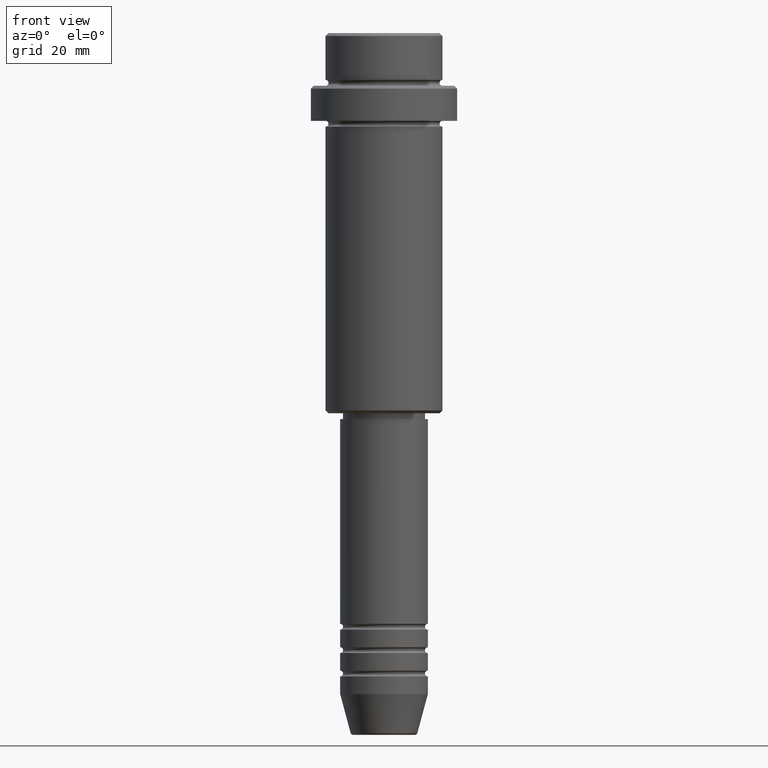
[diagram: clean part render]
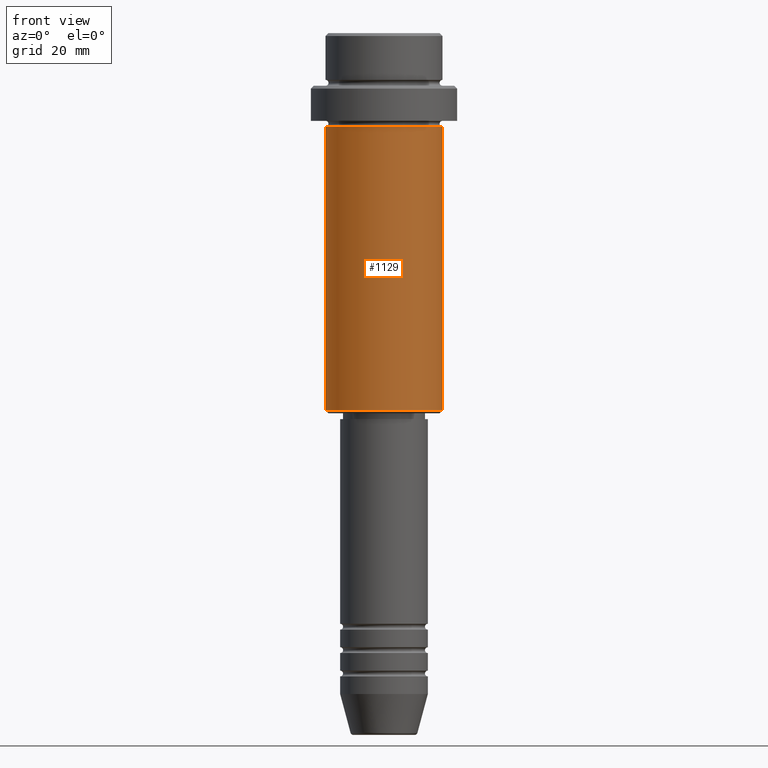
[diagram: same view with one face highlighted and labeled with its STEP entity id]
A machine part, front view. The second image highlights one B-rep face of the part: STEP entity #1129.
In plain terms, the highlighted cylindrical surface (partial cylindrical patch) has radius 10 mm, axis along (-0, -0, 1).
Its self-contained STEP definition (entity closure, byte-faithful):
#23 = LINE ( 'NONE', #113, #448 ) ;
#45 = VERTEX_POINT ( 'NONE', #390 ) ;
#49 = CARTESIAN_POINT ( 'NONE',  ( 9.999999999999998224, 0.000000000000000000, -16.00000000000000000 ) ) ;
#85 = LINE ( 'NONE', #949, #176 ) ;
#113 = CARTESIAN_POINT ( 'NONE',  ( 9.999999999999998224, 0.000000000000000000, 0.000000000000000000 ) ) ;
#114 = VERTEX_POINT ( 'NONE', #49 ) ;
#133 = CARTESIAN_POINT ( 'NONE',  ( -9.999999999999998224, 1.224646799147353059E-15, -16.00000000000000000 ) ) ;
#172 = VERTEX_POINT ( 'NONE', #492 ) ;
#175 = CYLINDRICAL_SURFACE ( 'NONE', #199, 9.999999999999998224 ) ;
#176 = VECTOR ( 'NONE', #1062, 1000.000000000000000 ) ;
#199 = AXIS2_PLACEMENT_3D ( 'NONE', #1286, #1290, #608 ) ;
#215 = DIRECTION ( 'NONE',  ( -0.000000000000000000, -0.000000000000000000, 1.000000000000000000 ) ) ;
#273 = DIRECTION ( 'NONE',  ( 1.000000000000000000, 0.000000000000000000, 0.000000000000000000 ) ) ;
#324 = ORIENTED_EDGE ( 'NONE', *, *, #1316, .T. ) ;
#390 = CARTESIAN_POINT ( 'NONE',  ( 9.999999999999998224, 0.000000000000000000, -64.50000000000001421 ) ) ;
#448 = VECTOR ( 'NONE', #215, 1000.000000000000000 ) ;
#465 = VERTEX_POINT ( 'NONE', #133 ) ;
#492 = CARTESIAN_POINT ( 'NONE',  ( -9.999999999999998224, 1.224646799147353059E-15, -64.50000000000001421 ) ) ;
#509 = ORIENTED_EDGE ( 'NONE', *, *, #743, .F. ) ;
#608 = DIRECTION ( 'NONE',  ( 1.000000000000000000, 0.000000000000000000, 0.000000000000000000 ) ) ;
#641 = DIRECTION ( 'NONE',  ( -0.000000000000000000, -0.000000000000000000, 1.000000000000000000 ) ) ;
#673 = AXIS2_PLACEMENT_3D ( 'NONE', #1415, #641, #761 ) ;
#702 = DIRECTION ( 'NONE',  ( -0.000000000000000000, -0.000000000000000000, 1.000000000000000000 ) ) ;
#743 = EDGE_CURVE ( 'NONE', #465, #114, #1227, .T. ) ;
#761 = DIRECTION ( 'NONE',  ( -1.000000000000000000, 0.000000000000000000, 0.000000000000000000 ) ) ;
#810 = AXIS2_PLACEMENT_3D ( 'NONE', #926, #702, #273 ) ;
#849 = FACE_OUTER_BOUND ( 'NONE', #1334, .T. ) ;
#867 = EDGE_CURVE ( 'NONE', #172, #465, #85, .T. ) ;
#922 = ORIENTED_EDGE ( 'NONE', *, *, #867, .F. ) ;
#926 = CARTESIAN_POINT ( 'NONE',  ( 0.000000000000000000, 0.000000000000000000, -16.00000000000000000 ) ) ;
#949 = CARTESIAN_POINT ( 'NONE',  ( -9.999999999999998224, 1.224646799147353059E-15, 0.000000000000000000 ) ) ;
#987 = EDGE_CURVE ( 'NONE', #172, #45, #1340, .T. ) ;
#1020 = ORIENTED_EDGE ( 'NONE', *, *, #987, .T. ) ;
#1062 = DIRECTION ( 'NONE',  ( -0.000000000000000000, -0.000000000000000000, 1.000000000000000000 ) ) ;
#1129 = ADVANCED_FACE ( 'NONE', ( #849 ), #175, .T. ) ;
#1227 = CIRCLE ( 'NONE', #810, 9.999999999999998224 ) ;
#1286 = CARTESIAN_POINT ( 'NONE',  ( 0.000000000000000000, 0.000000000000000000, 0.000000000000000000 ) ) ;
#1290 = DIRECTION ( 'NONE',  ( -0.000000000000000000, -0.000000000000000000, 1.000000000000000000 ) ) ;
#1316 = EDGE_CURVE ( 'NONE', #45, #114, #23, .T. ) ;
#1334 = EDGE_LOOP ( 'NONE', ( #922, #1020, #324, #509 ) ) ;
#1340 = CIRCLE ( 'NONE', #673, 9.999999999999998224 ) ;
#1415 = CARTESIAN_POINT ( 'NONE',  ( 0.000000000000000000, 0.000000000000000000, -64.50000000000001421 ) ) ;